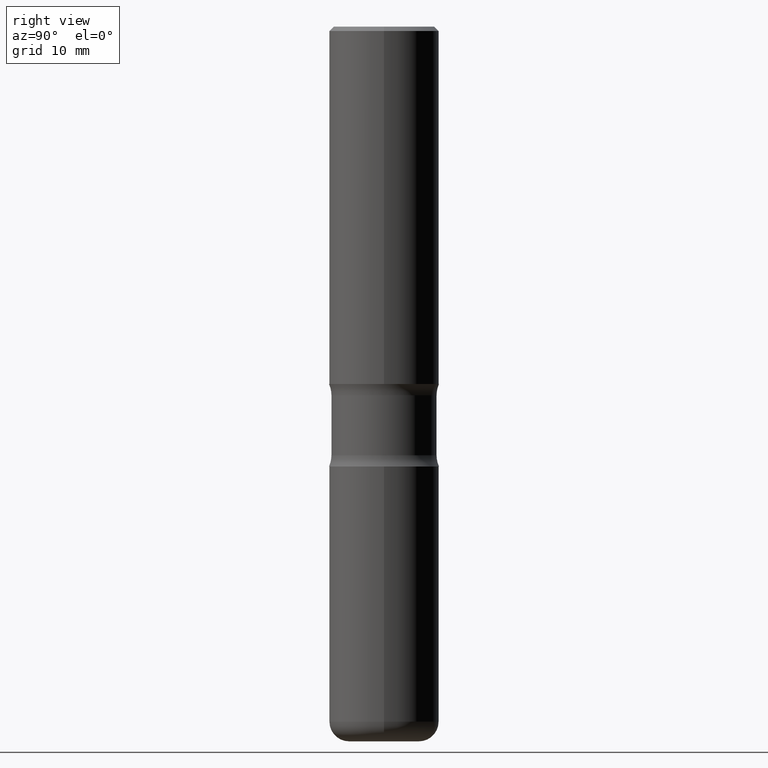
[diagram: clean part render]
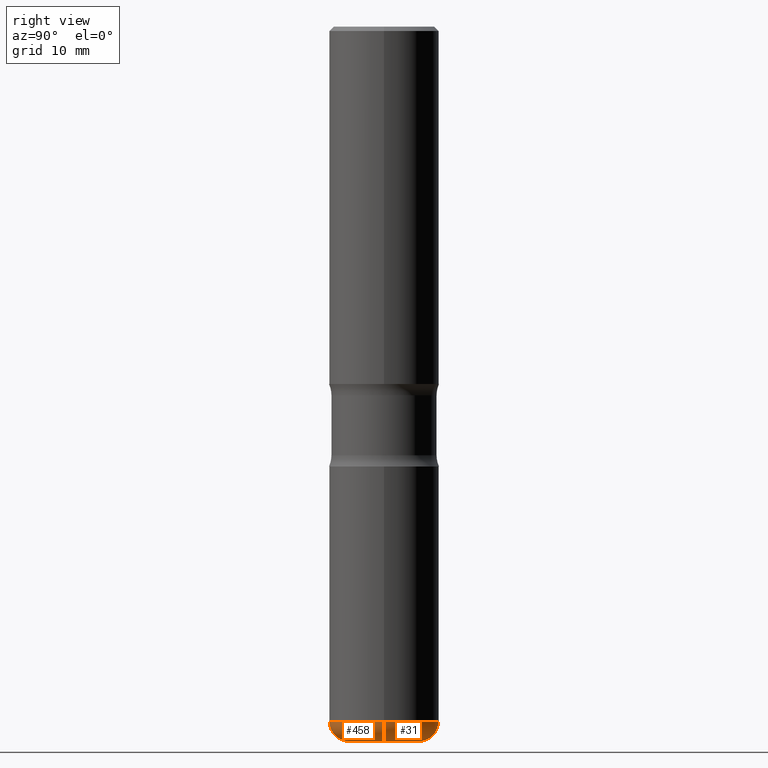
[diagram: same view with one multi-face feature highlighted, each face labeled with its STEP entity id]
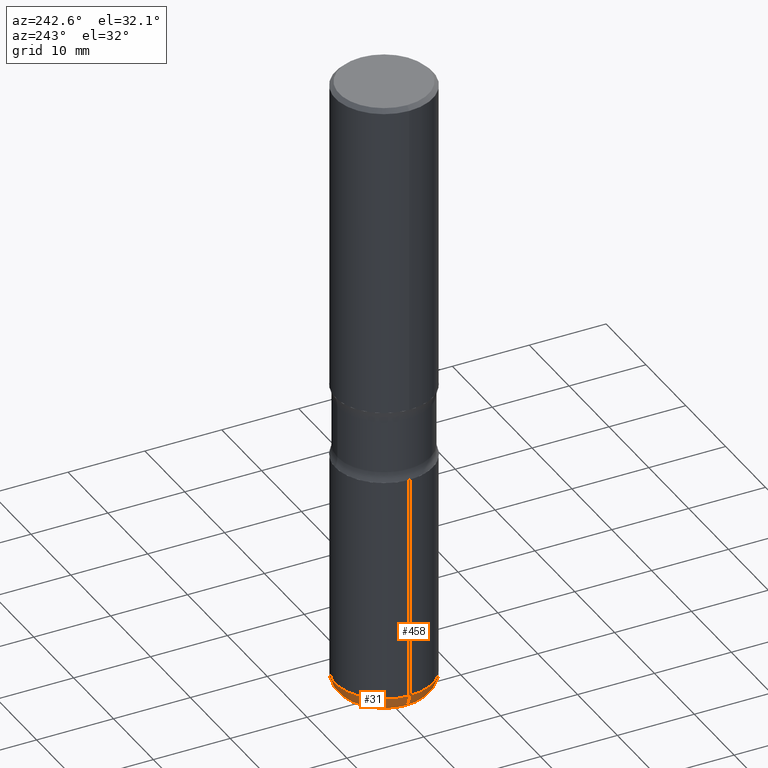
[diagram: same view with one multi-face feature highlighted, each face labeled with its STEP entity id]
A machine part, right view. The highlighted faces form ONE feature: a constant-radius fillet chain: 2 tangent blend faces with common blend radius 2.286 mm. The faces share edges in the B-rep.
A second angle (auxiliary view) of the same feature is appended — it is thin or edge-on in the first view.
Their STEP definitions:
[1] entity #458 (Torus):
#36 = CARTESIAN_POINT ( 'NONE',  ( -0.2500000000000004441, -9.256724191344087541E-15, -3.160000000000000142 ) ) ;
#41 = DIRECTION ( 'NONE',  ( -2.445468806185136597E-29, 3.491481338843145583E-15, 1.000000000000000000 ) ) ;
#75 = ORIENTED_EDGE ( 'NONE', *, *, #151, .T. ) ;
#84 = AXIS2_PLACEMENT_3D ( 'NONE', #375, #153, #251 ) ;
#118 = CIRCLE ( 'NONE', #438, 0.1600000000000005862 ) ;
#131 = AXIS2_PLACEMENT_3D ( 'NONE', #318, #535, #139 ) ;
#139 = DIRECTION ( 'NONE',  ( 1.000000000000000000, -6.982962677686270655E-15, 0.000000000000000000 ) ) ;
#151 = EDGE_CURVE ( 'NONE', #547, #184, #199, .T. ) ;
#153 = DIRECTION ( 'NONE',  ( -2.445468806185136597E-29, 3.491481338843145583E-15, 1.000000000000000000 ) ) ;
#157 = ORIENTED_EDGE ( 'NONE', *, *, #217, .T. ) ;
#172 = DIRECTION ( 'NONE',  ( -1.000000000000000000, 7.105427357600993181E-15, 0.000000000000000000 ) ) ;
#184 = VERTEX_POINT ( 'NONE', #448 ) ;
#199 = CIRCLE ( 'NONE', #131, 0.08999999999999969136 ) ;
#217 = EDGE_CURVE ( 'NONE', #433, #547, #118, .T. ) ;
#222 = ORIENTED_EDGE ( 'NONE', *, *, #497, .F. ) ;
#228 = EDGE_LOOP ( 'NONE', ( #222, #157, #75, #387 ) ) ;
#251 = DIRECTION ( 'NONE',  ( 1.000000000000000000, -6.982962677686269077E-15, 0.000000000000000000 ) ) ;
#263 = DIRECTION ( 'NONE',  ( 1.000000000000000000, -6.982962677686270655E-15, 4.883557194083114583E-29 ) ) ;
#275 = CARTESIAN_POINT ( 'NONE',  ( 7.947773620101692818E-29, -1.134731435124022127E-14, -3.249999999999999556 ) ) ;
#297 = CARTESIAN_POINT ( 'NONE',  ( -0.1600000000000005862, -9.733585082684072174E-15, -3.249999999999999556 ) ) ;
#318 = CARTESIAN_POINT ( 'NONE',  ( 0.1600000000000005862, -1.215035505917414762E-14, -3.160000000000000142 ) ) ;
#322 = AXIS2_PLACEMENT_3D ( 'NONE', #422, #41, #263 ) ;
#364 = CIRCLE ( 'NONE', #84, 0.2500000000000006106 ) ;
#367 = DIRECTION ( 'NONE',  ( -2.445468806185136597E-29, 3.491481338843145583E-15, 1.000000000000000000 ) ) ;
#371 = CIRCLE ( 'NONE', #476, 0.08999999999999969136 ) ;
#375 = CARTESIAN_POINT ( 'NONE',  ( 7.727681427545032274E-29, -1.103308103074433958E-14, -3.160000000000000142 ) ) ;
#387 = ORIENTED_EDGE ( 'NONE', *, *, #400, .F. ) ;
#389 = CARTESIAN_POINT ( 'NONE',  ( -0.1600000000000005862, -9.896212653528176699E-15, -3.160000000000000142 ) ) ;
#400 = EDGE_CURVE ( 'NONE', #475, #184, #364, .T. ) ;
#406 = TOROIDAL_SURFACE ( 'NONE', #322, 0.1600000000000005862, 0.08999999999999967748 ) ;
#422 = CARTESIAN_POINT ( 'NONE',  ( 7.727681427545032274E-29, -1.103308103074433958E-14, -3.160000000000000142 ) ) ;
#433 = VERTEX_POINT ( 'NONE', #297 ) ;
#438 = AXIS2_PLACEMENT_3D ( 'NONE', #275, #367, #481 ) ;
#448 = CARTESIAN_POINT ( 'NONE',  ( 0.2500000000000004441, -1.277882170016590942E-14, -3.160000000000000142 ) ) ;
#458 = ADVANCED_FACE ( 'NONE', ( #507 ), #406, .T. ) ;
#475 = VERTEX_POINT ( 'NONE', #36 ) ;
#476 = AXIS2_PLACEMENT_3D ( 'NONE', #389, #516, #172 ) ;
#477 = CARTESIAN_POINT ( 'NONE',  ( 0.1600000000000005862, -1.246458837967002931E-14, -3.249999999999999556 ) ) ;
#481 = DIRECTION ( 'NONE',  ( 1.000000000000000000, -6.982962677686270655E-15, 0.000000000000000000 ) ) ;
#497 = EDGE_CURVE ( 'NONE', #433, #475, #371, .T. ) ;
#507 = FACE_OUTER_BOUND ( 'NONE', #228, .T. ) ;
#516 = DIRECTION ( 'NONE',  ( 7.105427357601001859E-15, 1.000000000000000000, -3.491481338843145583E-15 ) ) ;
#535 = DIRECTION ( 'NONE',  ( -6.982962677686266711E-15, -1.000000000000000000, 3.491481338843145583E-15 ) ) ;
#547 = VERTEX_POINT ( 'NONE', #477 ) ;
[2] entity #31 (Torus):
#25 = CIRCLE ( 'NONE', #146, 0.2500000000000006106 ) ;
#27 = DIRECTION ( 'NONE',  ( 1.000000000000000000, -6.982962677686270655E-15, 0.000000000000000000 ) ) ;
#30 = ORIENTED_EDGE ( 'NONE', *, *, #497, .T. ) ;
#31 = ADVANCED_FACE ( 'NONE', ( #336 ), #93, .T. ) ;
#36 = CARTESIAN_POINT ( 'NONE',  ( -0.2500000000000004441, -9.256724191344087541E-15, -3.160000000000000142 ) ) ;
#39 = ORIENTED_EDGE ( 'NONE', *, *, #260, .F. ) ;
#42 = EDGE_LOOP ( 'NONE', ( #292, #30, #39, #463 ) ) ;
#48 = AXIS2_PLACEMENT_3D ( 'NONE', #70, #287, #27 ) ;
#70 = CARTESIAN_POINT ( 'NONE',  ( 7.947773620101692818E-29, -1.134731435124022127E-14, -3.249999999999999556 ) ) ;
#93 = TOROIDAL_SURFACE ( 'NONE', #282, 0.1600000000000005862, 0.08999999999999967748 ) ;
#131 = AXIS2_PLACEMENT_3D ( 'NONE', #318, #535, #139 ) ;
#139 = DIRECTION ( 'NONE',  ( 1.000000000000000000, -6.982962677686270655E-15, 0.000000000000000000 ) ) ;
#146 = AXIS2_PLACEMENT_3D ( 'NONE', #271, #361, #231 ) ;
#151 = EDGE_CURVE ( 'NONE', #547, #184, #199, .T. ) ;
#172 = DIRECTION ( 'NONE',  ( -1.000000000000000000, 7.105427357600993181E-15, 0.000000000000000000 ) ) ;
#184 = VERTEX_POINT ( 'NONE', #448 ) ;
#193 = DIRECTION ( 'NONE',  ( 1.000000000000000000, -6.982962677686270655E-15, 4.883557194083114583E-29 ) ) ;
#199 = CIRCLE ( 'NONE', #131, 0.08999999999999969136 ) ;
#231 = DIRECTION ( 'NONE',  ( 1.000000000000000000, -6.982962677686269077E-15, 0.000000000000000000 ) ) ;
#243 = DIRECTION ( 'NONE',  ( -2.445468806185136597E-29, 3.491481338843145583E-15, 1.000000000000000000 ) ) ;
#260 = EDGE_CURVE ( 'NONE', #184, #475, #25, .T. ) ;
#271 = CARTESIAN_POINT ( 'NONE',  ( 7.727681427545032274E-29, -1.103308103074433958E-14, -3.160000000000000142 ) ) ;
#282 = AXIS2_PLACEMENT_3D ( 'NONE', #536, #243, #193 ) ;
#287 = DIRECTION ( 'NONE',  ( -2.445468806185136597E-29, 3.491481338843145583E-15, 1.000000000000000000 ) ) ;
#292 = ORIENTED_EDGE ( 'NONE', *, *, #432, .T. ) ;
#297 = CARTESIAN_POINT ( 'NONE',  ( -0.1600000000000005862, -9.733585082684072174E-15, -3.249999999999999556 ) ) ;
#300 = CIRCLE ( 'NONE', #48, 0.1600000000000005862 ) ;
#318 = CARTESIAN_POINT ( 'NONE',  ( 0.1600000000000005862, -1.215035505917414762E-14, -3.160000000000000142 ) ) ;
#336 = FACE_OUTER_BOUND ( 'NONE', #42, .T. ) ;
#361 = DIRECTION ( 'NONE',  ( -2.445468806185136597E-29, 3.491481338843145583E-15, 1.000000000000000000 ) ) ;
#371 = CIRCLE ( 'NONE', #476, 0.08999999999999969136 ) ;
#389 = CARTESIAN_POINT ( 'NONE',  ( -0.1600000000000005862, -9.896212653528176699E-15, -3.160000000000000142 ) ) ;
#432 = EDGE_CURVE ( 'NONE', #547, #433, #300, .T. ) ;
#433 = VERTEX_POINT ( 'NONE', #297 ) ;
#448 = CARTESIAN_POINT ( 'NONE',  ( 0.2500000000000004441, -1.277882170016590942E-14, -3.160000000000000142 ) ) ;
#463 = ORIENTED_EDGE ( 'NONE', *, *, #151, .F. ) ;
#475 = VERTEX_POINT ( 'NONE', #36 ) ;
#476 = AXIS2_PLACEMENT_3D ( 'NONE', #389, #516, #172 ) ;
#477 = CARTESIAN_POINT ( 'NONE',  ( 0.1600000000000005862, -1.246458837967002931E-14, -3.249999999999999556 ) ) ;
#497 = EDGE_CURVE ( 'NONE', #433, #475, #371, .T. ) ;
#516 = DIRECTION ( 'NONE',  ( 7.105427357601001859E-15, 1.000000000000000000, -3.491481338843145583E-15 ) ) ;
#535 = DIRECTION ( 'NONE',  ( -6.982962677686266711E-15, -1.000000000000000000, 3.491481338843145583E-15 ) ) ;
#536 = CARTESIAN_POINT ( 'NONE',  ( 7.727681427545032274E-29, -1.103308103074433958E-14, -3.160000000000000142 ) ) ;
#547 = VERTEX_POINT ( 'NONE', #477 ) ;